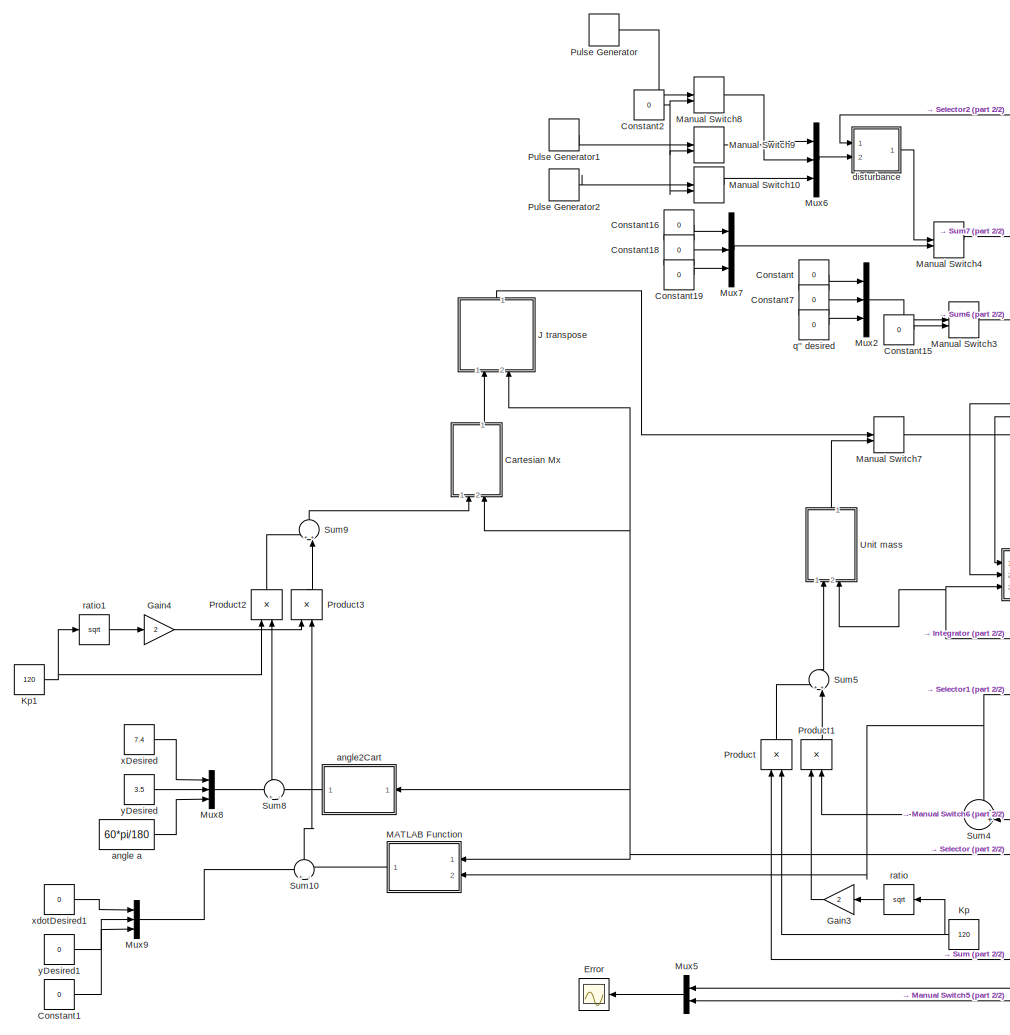
[diagram: root canvas - part 1/2, left side, full height]
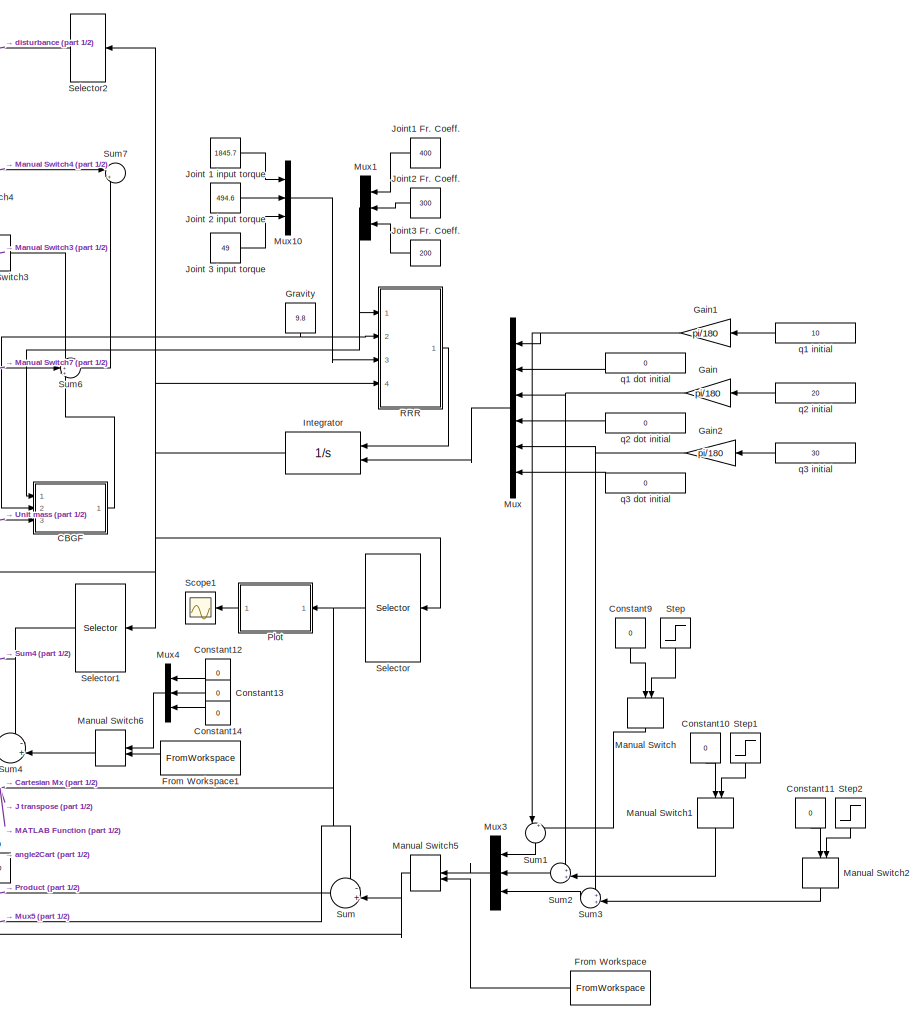
[diagram: root canvas - part 2/2, right side, full height]
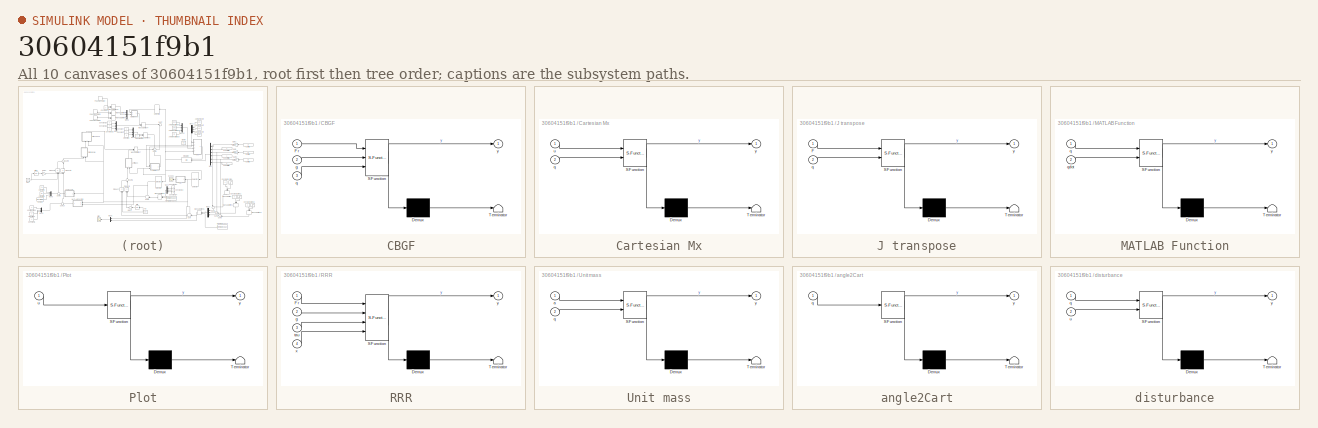
[diagram: thumbnail index - all 10 canvases of the model, root first then tree order]
MODEL slx_30604151f9b1
KIND model
CONFIG AbsTol = auto
CONFIG EnableMultiTasking = on
CONFIG FixedStep = 0.01
CONFIG MaxStep = auto
CONFIG MinStep = auto
CONFIG RelTol = 1e-3
CONFIG SampleTimeConstraint = Unconstrained
CONFIG Solver = ode4
CONFIG SolverName = ode4
CONFIG StartTime = 0.0
CONFIG StopTime = inf
WORKSPACE source: MAT-file member
WORKSPACE Kp = 1
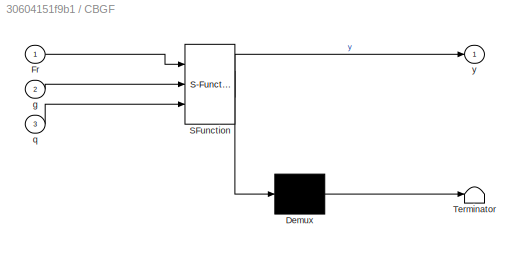
BLOCK [SubSystem] CBGF
  ErrorFcn = Stateflow.Translate.translate
  PermitHierarchicalResolution = ExplicitOnly
  Ports = [3, 1]
  RequestExecContextInheritance = off
  SFBlockType = MATLAB Function
  TreatAsAtomicUnit = on
BLOCK [Demux] CBGF/ Demux 
  Outputs = 1
  Ports = [1, 1]
BLOCK [S-Function] CBGF/ SFunction 
  EnableBusSupport = on
  FunctionName = sf_sfun
  PortCounts = [3 2]
  Ports = [3, 2]
  SFcnIsStateOwnerBlock = off
  SFunctionDeploymentMode = off
  Tag = Stateflow S-Function Final 4
BLOCK [Terminator] CBGF/ Terminator 
BLOCK [Inport] CBGF/Fr
  IconDisplay = Port number
BLOCK [Inport] CBGF/g
  IconDisplay = Port number
  Port = 2
BLOCK [Inport] CBGF/q
  IconDisplay = Port number
  Port = 3
BLOCK [Outport] CBGF/y
  IconDisplay = Port number
BLOCK [SubSystem] Cartesian Mx
  ErrorFcn = Stateflow.Translate.translate
  PermitHierarchicalResolution = ExplicitOnly
  Ports = [2, 1]
  RequestExecContextInheritance = off
  SFBlockType = MATLAB Function
  TreatAsAtomicUnit = on
BLOCK [Demux] Cartesian Mx/ Demux 
  Outputs = 1
  Ports = [1, 1]
BLOCK [S-Function] Cartesian Mx/ SFunction 
  EnableBusSupport = on
  FunctionName = sf_sfun
  PortCounts = [2 2]
  Ports = [2, 2]
  SFcnIsStateOwnerBlock = off
  SFunctionDeploymentMode = off
  Tag = Stateflow S-Function Final 6
BLOCK [Terminator] Cartesian Mx/ Terminator 
BLOCK [Inport] Cartesian Mx/q
  IconDisplay = Port number
  Port = 2
BLOCK [Inport] Cartesian Mx/u
  IconDisplay = Port number
BLOCK [Outport] Cartesian Mx/y
  IconDisplay = Port number
BLOCK [Constant] Constant
  Value = 0
BLOCK [Constant] Constant1
  Value = 0
BLOCK [Constant] Constant10
  Value = 0
BLOCK [Constant] Constant11
  Value = 0
BLOCK [Constant] Constant12
  Value = 0
BLOCK [Constant] Constant13
  Value = 0
BLOCK [Constant] Constant14
  Value = 0
BLOCK [Constant] Constant15
  Value = 0
BLOCK [Constant] Constant16
  Value = 0
BLOCK [Constant] Constant18
  Value = 0
BLOCK [Constant] Constant19
  Value = 0
BLOCK [Constant] Constant2
  Value = 0
BLOCK [Constant] Constant7
  Value = 0
BLOCK [Constant] Constant9
  Value = 0
BLOCK [Scope] Error
  Floating = off
  NumInputPorts = 1
  Ports = [1]
  ScopeSpecificationString = Simulink.scopes.TimeScopeBlockCfg('CurrentConfiguration', extmgr.ConfigurationSet(extmgr.Configuration('Core','General UI',true),extmgr.Configuration('Core','Source UI',true),extmgr.Configuration('Sources','WiredSimulink',true,'DataLoggingVariableName','ScopeData1'),extmgr.Configuration('Visuals','Time Domain',true,'SerializedDisplays',{struct('MinYLimReal','-0.74712','MaxYLimReal','0.74494','YLab...<+1658ch>
BLOCK [FromWorkspace] From Workspace
  SampleTime = 0
  VariableName = qTrajectory
  ZeroCross = on
BLOCK [FromWorkspace] From Workspace1
  SampleTime = 0
  VariableName = qdotTrajectory
  ZeroCross = on
BLOCK [Gain] Gain
  Gain = pi/180
  OutDataTypeStr = Inherit: Inherit via internal rule
  ParamDataTypeStr = Inherit: Inherit via internal rule
  SaturateOnIntegerOverflow = off
BLOCK [Gain] Gain1
  Gain = pi/180
  OutDataTypeStr = Inherit: Inherit via internal rule
  ParamDataTypeStr = Inherit: Inherit via internal rule
  SaturateOnIntegerOverflow = off
BLOCK [Gain] Gain2
  Gain = pi/180
  OutDataTypeStr = Inherit: Inherit via internal rule
  ParamDataTypeStr = Inherit: Inherit via internal rule
  SaturateOnIntegerOverflow = off
BLOCK [Gain] Gain3
  Gain = 2
  OutDataTypeStr = Inherit: Inherit via internal rule
  ParamDataTypeStr = Inherit: Inherit via internal rule
  SaturateOnIntegerOverflow = off
BLOCK [Gain] Gain4
  Gain = 2
  OutDataTypeStr = Inherit: Inherit via internal rule
  ParamDataTypeStr = Inherit: Inherit via internal rule
  SaturateOnIntegerOverflow = off
BLOCK [Constant] Gravity
  Value = 9.8
BLOCK [Integrator] Integrator
  InitialConditionSource = external
  Ports = [2, 1]
BLOCK [SubSystem] J transpose
  ErrorFcn = Stateflow.Translate.translate
  PermitHierarchicalResolution = ExplicitOnly
  Ports = [2, 1]
  RequestExecContextInheritance = off
  SFBlockType = MATLAB Function
  TreatAsAtomicUnit = on
BLOCK [Demux] J transpose/ Demux 
  Outputs = 1
  Ports = [1, 1]
BLOCK [S-Function] J transpose/ SFunction 
  EnableBusSupport = on
  FunctionName = sf_sfun
  PortCounts = [2 2]
  Ports = [2, 2]
  SFcnIsStateOwnerBlock = off
  SFunctionDeploymentMode = off
  Tag = Stateflow S-Function Final 8
BLOCK [Terminator] J transpose/ Terminator 
BLOCK [Inport] J transpose/F
  IconDisplay = Port number
BLOCK [Inport] J transpose/q
  IconDisplay = Port number
  Port = 2
BLOCK [Outport] J transpose/y
  IconDisplay = Port number
BLOCK [Constant] Joint 1 input torque
  Value = 1845.7
BLOCK [Constant] Joint 2 input torque
  Value = 494.6
BLOCK [Constant] Joint 3 input torque
  Value = 49
BLOCK [Constant] Joint1 Fr. Coeff.
  Value = 400
BLOCK [Constant] Joint2 Fr. Coeff.
  Value = 300
BLOCK [Constant] Joint3 Fr. Coeff.
  Value = 200
BLOCK [Constant] Kp
  Value = 120
BLOCK [Constant] Kp1
  Value = 120
BLOCK [SubSystem] MATLAB Function
  ErrorFcn = Stateflow.Translate.translate
  PermitHierarchicalResolution = ExplicitOnly
  Ports = [2, 1]
  RequestExecContextInheritance = off
  SFBlockType = MATLAB Function
  TreatAsAtomicUnit = on
BLOCK [Demux] MATLAB Function/ Demux 
  Outputs = 1
  Ports = [1, 1]
BLOCK [S-Function] MATLAB Function/ SFunction 
  EnableBusSupport = on
  FunctionName = sf_sfun
  PortCounts = [2 2]
  Ports = [2, 2]
  SFcnIsStateOwnerBlock = off
  SFunctionDeploymentMode = off
  Tag = Stateflow S-Function Final 9
BLOCK [Terminator] MATLAB Function/ Terminator 
BLOCK [Inport] MATLAB Function/q
  IconDisplay = Port number
BLOCK [Inport] MATLAB Function/qdot
  IconDisplay = Port number
  Port = 2
BLOCK [Outport] MATLAB Function/y
  IconDisplay = Port number
BLOCK [ManualSwitch] Manual Switch
BLOCK [ManualSwitch] Manual Switch1
BLOCK [ManualSwitch] Manual Switch10
  CurrentSetting = 0
BLOCK [ManualSwitch] Manual Switch2
BLOCK [ManualSwitch] Manual Switch3
  CurrentSetting = 0
BLOCK [ManualSwitch] Manual Switch4
  CurrentSetting = 0
BLOCK [ManualSwitch] Manual Switch5
BLOCK [ManualSwitch] Manual Switch6
BLOCK [ManualSwitch] Manual Switch7
BLOCK [ManualSwitch] Manual Switch8
  CurrentSetting = 0
BLOCK [ManualSwitch] Manual Switch9
  CurrentSetting = 0
BLOCK [Mux] Mux
  DisplayOption = bar
  Inputs = 6
  Ports = [6, 1]
BLOCK [Mux] Mux1
  DisplayOption = bar
  Inputs = 3
  Ports = [3, 1]
BLOCK [Mux] Mux10
  DisplayOption = bar
  Inputs = 3
  Ports = [3, 1]
BLOCK [Mux] Mux2
  DisplayOption = bar
  Inputs = 3
  Ports = [3, 1]
BLOCK [Mux] Mux3
  DisplayOption = bar
  Inputs = 3
  Ports = [3, 1]
BLOCK [Mux] Mux4
  DisplayOption = bar
  Inputs = 3
  Ports = [3, 1]
BLOCK [Mux] Mux5
  DisplayOption = bar
  Inputs = 2
  Ports = [2, 1]
BLOCK [Mux] Mux6
  DisplayOption = bar
  Inputs = 3
  Ports = [3, 1]
BLOCK [Mux] Mux7
  DisplayOption = bar
  Inputs = 3
  Ports = [3, 1]
BLOCK [Mux] Mux8
  DisplayOption = bar
  Inputs = 3
  Ports = [3, 1]
BLOCK [Mux] Mux9
  DisplayOption = bar
  Inputs = 3
  Ports = [3, 1]
BLOCK [SubSystem] Plot
  ErrorFcn = Stateflow.Translate.translate
  PermitHierarchicalResolution = ExplicitOnly
  Ports = [1, 1]
  RequestExecContextInheritance = off
  SFBlockType = MATLAB Function
  TreatAsAtomicUnit = on
BLOCK [Demux] Plot/ Demux 
  Outputs = 1
  Ports = [1, 1]
BLOCK [S-Function] Plot/ SFunction 
  EnableBusSupport = on
  FunctionName = sf_sfun
  PortCounts = [1 2]
  Ports = [1, 2]
  SFcnIsStateOwnerBlock = off
  SFunctionDeploymentMode = off
  Tag = Stateflow S-Function Final 1
BLOCK [Terminator] Plot/ Terminator 
BLOCK [Inport] Plot/u
  IconDisplay = Port number
BLOCK [Outport] Plot/y
  IconDisplay = Port number
BLOCK [Product] Product
  InputSameDT = off
  OutDataTypeStr = Inherit: Inherit via internal rule
  Ports = [2, 1]
  RndMeth = Floor
  SaturateOnIntegerOverflow = off
BLOCK [Product] Product1
  InputSameDT = off
  OutDataTypeStr = Inherit: Inherit via internal rule
  Ports = [2, 1]
  RndMeth = Floor
  SaturateOnIntegerOverflow = off
BLOCK [Product] Product2
  InputSameDT = off
  OutDataTypeStr = Inherit: Inherit via internal rule
  Ports = [2, 1]
  RndMeth = Floor
  SaturateOnIntegerOverflow = off
BLOCK [Product] Product3
  InputSameDT = off
  OutDataTypeStr = Inherit: Inherit via internal rule
  Ports = [2, 1]
  RndMeth = Floor
  SaturateOnIntegerOverflow = off
BLOCK [DiscretePulseGenerator] Pulse Generator
  Amplitude = 200
  Period = 5
  Ports = [0, 1]
  PulseType = Time based
  PulseWidth = 5
BLOCK [DiscretePulseGenerator] Pulse Generator1
  Amplitude = 200
  Period = 5
  Ports = [0, 1]
  PulseType = Time based
  PulseWidth = 5
BLOCK [DiscretePulseGenerator] Pulse Generator2
  Amplitude = 200
  Period = 5
  Ports = [0, 1]
  PulseType = Time based
  PulseWidth = 5
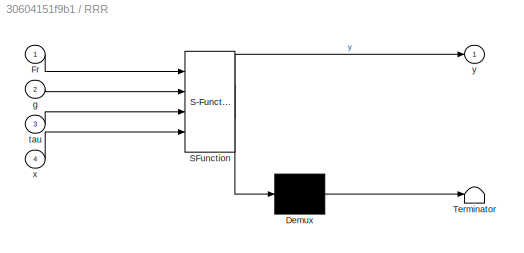
BLOCK [SubSystem] RRR
  ErrorFcn = Stateflow.Translate.translate
  PermitHierarchicalResolution = ExplicitOnly
  Ports = [4, 1]
  RequestExecContextInheritance = off
  SFBlockType = MATLAB Function
  TreatAsAtomicUnit = on
BLOCK [Demux] RRR/ Demux 
  Outputs = 1
  Ports = [1, 1]
BLOCK [S-Function] RRR/ SFunction 
  EnableBusSupport = on
  FunctionName = sf_sfun
  PortCounts = [4 2]
  Ports = [4, 2]
  SFcnIsStateOwnerBlock = off
  SFunctionDeploymentMode = off
  Tag = Stateflow S-Function Final 2
BLOCK [Terminator] RRR/ Terminator 
BLOCK [Inport] RRR/Fr
  IconDisplay = Port number
BLOCK [Inport] RRR/g
  IconDisplay = Port number
  Port = 2
BLOCK [Inport] RRR/tau
  IconDisplay = Port number
  Port = 3
BLOCK [Inport] RRR/x
  IconDisplay = Port number
  Port = 4
BLOCK [Outport] RRR/y
  IconDisplay = Port number
BLOCK [Scope] Scope1
  Floating = off
  NumInputPorts = 1
  Ports = [1]
  ScopeSpecificationString = Simulink.scopes.TimeScopeBlockCfg('CurrentConfiguration', extmgr.ConfigurationSet(extmgr.Configuration('Core','General UI',true),extmgr.Configuration('Core','Source UI',true),extmgr.Configuration('Sources','WiredSimulink',true,'DataLoggingVariableName','ScopeData1'),extmgr.Configuration('Visuals','Time Domain',true,'SerializedDisplays',{struct('MinYLimReal','-0.10847','MaxYLimReal','0.81893','YLab...<+1413ch>
BLOCK [Selector] Selector
  IndexOptions = Index vector (dialog)
  Indices = [1 3 5]
  InputPortWidth = 6
  OutputSizes = 1
  Ports = [1, 1]
BLOCK [Selector] Selector1
  IndexOptions = Index vector (dialog)
  Indices = [2 4 6]
  InputPortWidth = 6
  OutputSizes = 1
  Ports = [1, 1]
BLOCK [Selector] Selector2
  IndexOptions = Index vector (dialog)
  Indices = [1 3 5]
  InputPortWidth = 6
  OutputSizes = 1
  Ports = [1, 1]
BLOCK [Step] Step
  After = pi/18
  SampleTime = 0
  Time = 0
BLOCK [Step] Step1
  After = pi/18
  SampleTime = 0
  Time = 0
BLOCK [Step] Step2
  After = pi/2
  SampleTime = 0
  Time = 0
BLOCK [Sum] Sum
  IconShape = round
  InputSameDT = off
  Inputs = -+|
  OutDataTypeStr = Inherit: Inherit via internal rule
  Ports = [2, 1]
  SaturateOnIntegerOverflow = off
BLOCK [Sum] Sum1
  IconShape = round
  InputSameDT = off
  Inputs = |++
  OutDataTypeStr = Inherit: Inherit via internal rule
  Ports = [2, 1]
  SaturateOnIntegerOverflow = off
BLOCK [Sum] Sum10
  IconShape = round
  InputSameDT = off
  Inputs = +|-
  OutDataTypeStr = Inherit: Inherit via internal rule
  Ports = [2, 1]
  SaturateOnIntegerOverflow = off
BLOCK [Sum] Sum2
  IconShape = round
  InputSameDT = off
  Inputs = ++|
  OutDataTypeStr = Inherit: Inherit via internal rule
  Ports = [2, 1]
  SaturateOnIntegerOverflow = off
BLOCK [Sum] Sum3
  IconShape = round
  InputSameDT = off
  Inputs = ++|
  OutDataTypeStr = Inherit: Inherit via internal rule
  Ports = [2, 1]
  SaturateOnIntegerOverflow = off
BLOCK [Sum] Sum4
  IconShape = round
  InputSameDT = off
  Inputs = -+|
  OutDataTypeStr = Inherit: Inherit via internal rule
  Ports = [2, 1]
  SaturateOnIntegerOverflow = off
BLOCK [Sum] Sum5
  IconShape = round
  InputSameDT = off
  Inputs = ++|
  OutDataTypeStr = Inherit: Inherit via internal rule
  Ports = [2, 1]
  SaturateOnIntegerOverflow = off
BLOCK [Sum] Sum6
  IconShape = round
  InputSameDT = off
  Inputs = +++
  OutDataTypeStr = Inherit: Inherit via internal rule
  Ports = [3, 1]
  SaturateOnIntegerOverflow = off
BLOCK [Sum] Sum7
  IconShape = round
  InputSameDT = off
  Inputs = |++
  OutDataTypeStr = Inherit: Inherit via internal rule
  Ports = [2, 1]
  SaturateOnIntegerOverflow = off
BLOCK [Sum] Sum8
  IconShape = round
  InputSameDT = off
  Inputs = +|-
  OutDataTypeStr = Inherit: Inherit via internal rule
  Ports = [2, 1]
  SaturateOnIntegerOverflow = off
BLOCK [Sum] Sum9
  IconShape = round
  InputSameDT = off
  Inputs = ++|
  OutDataTypeStr = Inherit: Inherit via internal rule
  Ports = [2, 1]
  SaturateOnIntegerOverflow = off
BLOCK [SubSystem] Unit mass
  ErrorFcn = Stateflow.Translate.translate
  PermitHierarchicalResolution = ExplicitOnly
  Ports = [2, 1]
  RequestExecContextInheritance = off
  SFBlockType = MATLAB Function
  TreatAsAtomicUnit = on
BLOCK [Demux] Unit mass/ Demux 
  Outputs = 1
  Ports = [1, 1]
BLOCK [S-Function] Unit mass/ SFunction 
  EnableBusSupport = on
  FunctionName = sf_sfun
  PortCounts = [2 2]
  Ports = [2, 2]
  SFcnIsStateOwnerBlock = off
  SFunctionDeploymentMode = off
  Tag = Stateflow S-Function Final 3
BLOCK [Terminator] Unit mass/ Terminator 
BLOCK [Inport] Unit mass/a
  IconDisplay = Port number
BLOCK [Inport] Unit mass/q
  IconDisplay = Port number
  Port = 2
BLOCK [Outport] Unit mass/y
  IconDisplay = Port number
BLOCK [Constant] angle a
  Value = 60*pi/180
BLOCK [SubSystem] angle2Cart
  ErrorFcn = Stateflow.Translate.translate
  PermitHierarchicalResolution = ExplicitOnly
  Ports = [1, 1]
  RequestExecContextInheritance = off
  SFBlockType = MATLAB Function
  TreatAsAtomicUnit = on
BLOCK [Demux] angle2Cart/ Demux 
  Outputs = 1
  Ports = [1, 1]
BLOCK [S-Function] angle2Cart/ SFunction 
  EnableBusSupport = on
  FunctionName = sf_sfun
  PortCounts = [1 2]
  Ports = [1, 2]
  SFcnIsStateOwnerBlock = off
  SFunctionDeploymentMode = off
  Tag = Stateflow S-Function Final 7
BLOCK [Terminator] angle2Cart/ Terminator 
BLOCK [Inport] angle2Cart/q
  IconDisplay = Port number
BLOCK [Outport] angle2Cart/y
  IconDisplay = Port number
BLOCK [SubSystem] disturbance
  ErrorFcn = Stateflow.Translate.translate
  PermitHierarchicalResolution = ExplicitOnly
  Ports = [2, 1]
  RequestExecContextInheritance = off
  SFBlockType = MATLAB Function
  TreatAsAtomicUnit = on
BLOCK [Demux] disturbance/ Demux 
  Outputs = 1
  Ports = [1, 1]
BLOCK [S-Function] disturbance/ SFunction 
  EnableBusSupport = on
  FunctionName = sf_sfun
  PortCounts = [2 2]
  Ports = [2, 2]
  SFcnIsStateOwnerBlock = off
  SFunctionDeploymentMode = off
  Tag = Stateflow S-Function Final 5
BLOCK [Terminator] disturbance/ Terminator 
BLOCK [Inport] disturbance/q
  IconDisplay = Port number
BLOCK [Inport] disturbance/u
  IconDisplay = Port number
  Port = 2
BLOCK [Outport] disturbance/y
  IconDisplay = Port number
BLOCK [Constant] q'' desired
  Value = 0
BLOCK [Constant] q1 dot initial
  Value = 0
BLOCK [Constant] q1 initial
  Value = 10
BLOCK [Constant] q2 dot initial
  Value = 0
BLOCK [Constant] q2 initial
  Value = 20
BLOCK [Constant] q3 dot initial
  Value = 0
BLOCK [Constant] q3 initial
  Value = 30
BLOCK [Sqrt] ratio
BLOCK [Sqrt] ratio1
BLOCK [Constant] xDesired
  Value = 7.4
BLOCK [Constant] xdotDesired1
  Value = 0
BLOCK [Constant] yDesired
  Value = 3.5
BLOCK [Constant] yDesired1
  Value = 0
LINE CBGF:1 -> Sum6:3
LINE Cartesian Mx:1 -> J transpose:1
LINE Constant10:1 -> Manual Switch1:1
LINE Constant11:1 -> Manual Switch2:1
LINE Constant12:1 -> Mux4:1
LINE Constant13:1 -> Mux4:2
LINE Constant14:1 -> Mux4:3
LINE Constant15:1 -> Manual Switch3:2
LINE Constant16:1 -> Mux7:1
LINE Constant18:1 -> Mux7:2
LINE Constant19:1 -> Mux7:3
LINE Constant1:1 -> Mux9:3
NET Constant2:1 -> Manual Switch10:2, Manual Switch8:2, Manual Switch9:2
LINE Constant7:1 -> Mux2:2
LINE Constant9:1 -> Manual Switch:1
LINE Constant:1 -> Mux2:1
LINE From Workspace1:1 -> Manual Switch6:2
LINE From Workspace:1 -> Manual Switch5:2
NET Gain1:1 -> Mux:1, Sum1:1
NET Gain2:1 -> Mux:5, Sum3:1
LINE Gain3:1 -> Product1:1
LINE Gain4:1 -> Product3:1
NET Gain:1 -> Mux:3, Sum2:1
NET Gravity:1 -> CBGF:2, RRR:2
NET Integrator:1 -> CBGF:3, RRR:4, Selector1:1, Selector2:1, Selector:1, Unit mass:2
LINE J transpose:1 -> Manual Switch7:1
LINE Joint 1 input torque:1 -> Mux10:1
LINE Joint 2 input torque:1 -> Mux10:2
LINE Joint 3 input torque:1 -> Mux10:3
LINE Joint1 Fr. Coeff.:1 -> Mux1:1
LINE Joint2 Fr. Coeff.:1 -> Mux1:2
LINE Joint3 Fr. Coeff.:1 -> Mux1:3
NET Kp1:1 -> Product2:1, ratio1:1
NET Kp:1 -> Product:2, ratio:1
LINE MATLAB Function:1 -> Sum10:2
LINE Manual Switch10:1 -> Mux6:3
LINE Manual Switch1:1 -> Sum2:2
LINE Manual Switch2:1 -> Sum3:2
LINE Manual Switch3:1 -> Sum6:1
LINE Manual Switch4:1 -> Sum7:1
NET Manual Switch5:1 -> Mux5:2, Sum:2
LINE Manual Switch6:1 -> Sum4:2
LINE Manual Switch7:1 -> Sum6:2
LINE Manual Switch8:1 -> Mux6:1
LINE Manual Switch9:1 -> Mux6:2
LINE Manual Switch:1 -> Sum1:2
LINE Mux10:1 -> RRR:3
NET Mux1:1 -> CBGF:1, RRR:1
LINE Mux2:1 -> Manual Switch3:1
LINE Mux3:1 -> Manual Switch5:1
LINE Mux4:1 -> Manual Switch6:1
LINE Mux5:1 -> Error:1
LINE Mux6:1 -> disturbance:2
LINE Mux7:1 -> Manual Switch4:2
LINE Mux8:1 -> Sum8:1
LINE Mux9:1 -> Sum10:1
LINE Mux:1 -> Integrator:2
LINE Plot:1 -> Scope1:1
LINE Product1:1 -> Sum5:2
LINE Product2:1 -> Sum9:1
LINE Product3:1 -> Sum9:2
LINE Product:1 -> Sum5:1
LINE Pulse Generator1:1 -> Manual Switch9:1
LINE Pulse Generator2:1 -> Manual Switch10:1
LINE Pulse Generator:1 -> Manual Switch8:1
LINE RRR:1 -> Integrator:1
NET Selector1:1 -> MATLAB Function:2, Sum4:1
LINE Selector2:1 -> disturbance:1
NET Selector:1 -> Cartesian Mx:2, J transpose:2, MATLAB Function:1, Mux5:1, Plot:1, Sum:1, angle2Cart:1
LINE Step1:1 -> Manual Switch1:2
LINE Step2:1 -> Manual Switch2:2
LINE Step:1 -> Manual Switch:2
LINE Sum10:1 -> Product3:2
LINE Sum1:1 -> Mux3:1
LINE Sum2:1 -> Mux3:2
LINE Sum3:1 -> Mux3:3
LINE Sum4:1 -> Product1:2
LINE Sum5:1 -> Unit mass:1
LINE Sum6:1 -> Sum7:2
LINE Sum8:1 -> Product2:2
LINE Sum9:1 -> Cartesian Mx:1
LINE Sum:1 -> Product:1
LINE Unit mass:1 -> Manual Switch7:2
LINE angle a:1 -> Mux8:3
LINE angle2Cart:1 -> Sum8:2
LINE disturbance:1 -> Manual Switch4:1
LINE q'' desired:1 -> Mux2:3
LINE q1 dot initial:1 -> Mux:2
LINE q1 initial:1 -> Gain1:1
LINE q2 dot initial:1 -> Mux:4
LINE q2 initial:1 -> Gain:1
LINE q3 dot initial:1 -> Mux:6
LINE q3 initial:1 -> Gain2:1
LINE ratio1:1 -> Gain4:1
LINE ratio:1 -> Gain3:1
LINE xDesired:1 -> Mux8:1
LINE xdotDesired1:1 -> Mux9:1
LINE yDesired1:1 -> Mux9:2
LINE yDesired:1 -> Mux8:2
note: NET lines group one-source signal fan-out (src -> all destinations, sorted); 1:1 wires keep LINE
CHART Plot states=1 transitions=1
  STATE_LABEL 'eML_blk_kernel()'
  STATE_LABEL 'SCRIPT:\nfunction y = fcn(u)\n%\n% q1 = u(1);\n% q2 = u(2);\n% q3 = u(3);\n%\n% x0 = 0;\n% y0 = 0;\n% x1 = 4*cos( q1);\n% y1 = 4*sin( q1);\n%\n% x2 = 3*cos( (q1+q2));\n% y2 = 3*sin( (q1+q2));\n%\n% x3 = 2*cos( (q1+q2+q3));\n% y3 = 2*sin( (q1+q2+q3));\n%\n% px0= 0;\n% py0 = 0;\n% px1 = x1;\n% py1 = y1;\n% px2 = x1+x2;\n% py2 = y1+y2;\n% px3 = x1+x2+x3;\n% py3 = y1+y2+y3;\n%\n% plot([px0,px1,px2,px3],[py0,py1,py2,py3]);\n% xli...<+1781ch>'
CHART RRR states=1 transitions=1
  STATE_LABEL 'eML_blk_kernel()'
  STATE_LABEL 'SCRIPT:\n\nfunction y = fcn(Fr,g,tau,x)\n\nq1 = x(1);\nq2 = x(3);\nq3 = x(5);\n\nM = zeros(3);\nM = [80*cos(q2 + q3) + 420*cos(q2) + 60*cos(q3) + 12291/20, 40*cos(q2 + q3) + 210*cos(q2) + 60*cos(q3) + 2681/20, 40*cos(q2 + q3) + 30*cos(q3) + 101/10;\n    40*cos(q2 + q3) + 210*cos(q2) + 60*cos(q3) + 2681/20,                                 60*cos(q3) + 2681/20,                   30*cos(q3) + 101/10;\n    40*co...<+1231ch>'
CHART Unit mass states=1 transitions=1
  STATE_LABEL 'eML_blk_kernel()'
  STATE_LABEL 'SCRIPT:\nfunction y = fcn(a,q)\nq1 = q(1);\nq2 = q(3);\nq3 = q(5);\n\nM = zeros(3);\nM = [80*cos(q2 + q3) + 420*cos(q2) + 60*cos(q3) + 12291/20, 40*cos(q2 + q3) + 210*cos(q2) + 60*cos(q3) + 2681/20, 40*cos(q2 + q3) + 30*cos(q3) + 101/10;\n    40*cos(q2 + q3) + 210*cos(q2) + 60*cos(q3) + 2681/20,                                 60*cos(q3) + 2681/20,                   30*cos(q3) + 101/10;\n    40*cos(q2 + q3...<+134ch>'
CHART CBGF states=1 transitions=1
  STATE_LABEL 'eML_blk_kernel()'
  STATE_LABEL 'SCRIPT:\nfunction y = fcn(Fr,g,q)\nq1 = q(1);\nq2 = q(3);\nq3 = q(5);\n\nM = zeros(3);\nM = [80*cos(q2 + q3) + 420*cos(q2) + 60*cos(q3) + 12291/20, 40*cos(q2 + q3) + 210*cos(q2) + 60*cos(q3) + 2681/20, 40*cos(q2 + q3) + 30*cos(q3) + 101/10;\n    40*cos(q2 + q3) + 210*cos(q2) + 60*cos(q3) + 2681/20,                                 60*cos(q3) + 2681/20,                   30*cos(q3) + 101/10;\n    40*cos(q2 +...<+1044ch>'
CHART disturbance states=1 transitions=1
  STATE_LABEL 'eML_blk_kernel()'
  STATE_LABEL "SCRIPT:\nfunction y = fcn(q,u)\nL1 = 4;\nL2 = 3;\nL3 = 2;\n\nq1 = q(1);\nq2 = q(2);\nq3 = q(3);\n\nJ0 = [-L3*sin(q1+q2+q3)-L2*sin(q1+q2)-L1*sin(q1) -L3*sin(q1+q2+q3)-L2*sin(q1+q2) -L3*sin(q1+q2+q3);\n    L3*cos(q1+q2+q3)+L2*cos(q1+q2)+L1*cos(q1) L3*cos(q1+q2+q3)+L2*cos(q1+q2) L3*cos(q1+q2+q3);\n    1 0 0];\n\n\ny = J0.' * u;\n"
CHART Cartesian Mx states=1 transitions=1
  STATE_LABEL 'eML_blk_kernel()'
  STATE_LABEL 'SCRIPT:\nfunction y = mx(u,q)\nq1 = q(1);\nq2 = q(2);\nq3 = q(3);\nMx = [                                                                                                                                                                                                                                                                                                                                            ...<+3608ch>'
CHART angle2Cart states=1 transitions=1
  STATE_LABEL 'eML_blk_kernel()'
  STATE_LABEL 'SCRIPT:\nfunction y =  ang2Cart(q)\nq1 = q(1);\nq2 = q(2);\nq3 = q(3);\n\nL1 = 4;\nL2 = 3;\nL3 = 2;\n\nT_0E = [cos(q1+q2+q3) -sin(q1+q2+q3) 0 L3*cos(q1+q2+q3)+L2*cos(q1+q2)+L1*cos(q1);\n    sin(q1+q2+q3) cos(q1+q2+q3) 0 L3*sin(q1+q2+q3)+L2*sin(q1+q2)+L1*sin(q1);\n    0 0 1 0;\n    0 0 0 1];\n\nXpos= T_0E(1,4);\nYpos= T_0E(2,4);\na = atan2(T_0E(2,1),T_0E(1,1));\n% a = atan(T_0E(2,1)/T_0E(1,1));\ny = [Xpos, Ypos,a];\n'
CHART J transpose states=1 transitions=1
  STATE_LABEL 'eML_blk_kernel()'
  STATE_LABEL "SCRIPT:\nfunction y = force2torque(F,q)\nL1 = 4;\nL2 = 3;\nL3 = 2;\n\nq1 = q(1);\nq2 = q(2);\nq3 = q(3);\n\nJ0 = [-L3*sin(q1+q2+q3)-L2*sin(q1+q2)-L1*sin(q1) -L3*sin(q1+q2+q3)-L2*sin(q1+q2) -L3*sin(q1+q2+q3);\n    L3*cos(q1+q2+q3)+L2*cos(q1+q2)+L1*cos(q1) L3*cos(q1+q2+q3)+L2*cos(q1+q2) L3*cos(q1+q2+q3);\n    1 0 0];\n\n\ny = J0.' * F;"
CHART MATLAB Function states=1 transitions=1
  STATE_LABEL 'eML_blk_kernel()'
  STATE_LABEL 'SCRIPT:\nfunction y = xdot(q,qdot)\nL1 = 4;\nL2 = 3;\nL3 = 2;\n\nq1 = q(1);\nq2 = q(2);\nq3 = q(3);\n\nJ0 = [-L3*sin(q1+q2+q3)-L2*sin(q1+q2)-L1*sin(q1) -L3*sin(q1+q2+q3)-L2*sin(q1+q2) -L3*sin(q1+q2+q3);\n    L3*cos(q1+q2+q3)+L2*cos(q1+q2)+L1*cos(q1) L3*cos(q1+q2+q3)+L2*cos(q1+q2) L3*cos(q1+q2+q3);\n    1 0 0];\n\ny = J0*qdot;\n'
